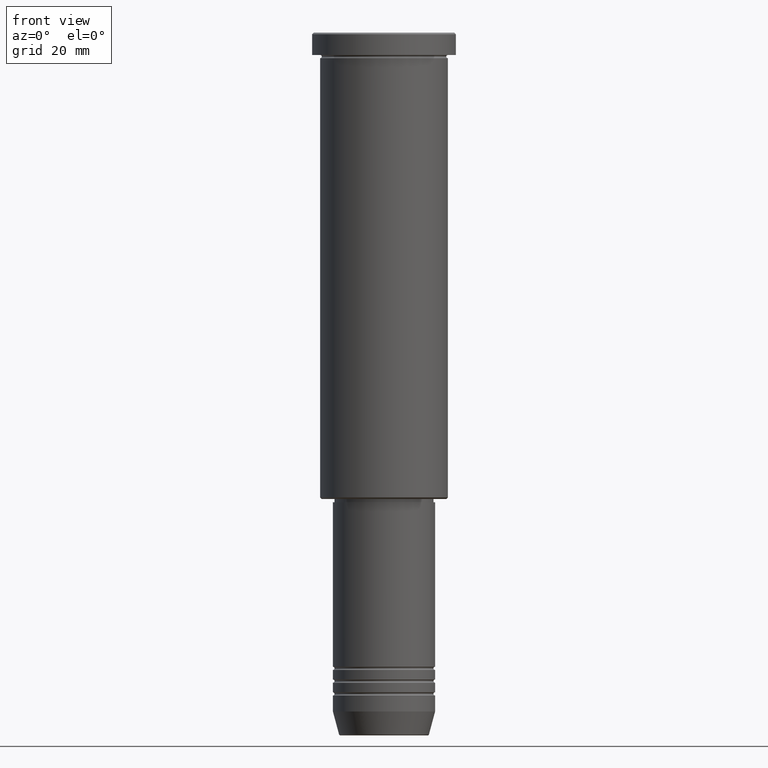
[diagram: clean part render]
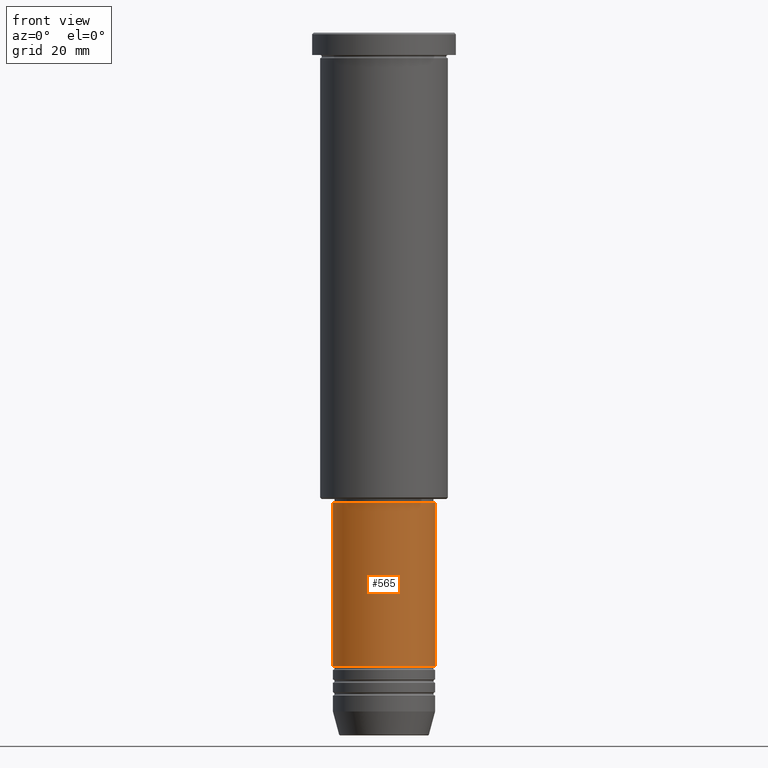
[diagram: same view with one face highlighted and labeled with its STEP entity id]
A machine part, front view. The second image highlights one B-rep face of the part: STEP entity #565.
In plain terms, the highlighted cylindrical surface (partial cylindrical patch) has radius 16 mm, axis along (-0, -0, 1).
Its self-contained STEP definition (entity closure, byte-faithful):
#125 = DIRECTION ( 'NONE',  ( -0.000000000000000000, -0.000000000000000000, 1.000000000000000000 ) ) ;
#139 = DIRECTION ( 'NONE',  ( 1.000000000000000000, 0.000000000000000000, 0.000000000000000000 ) ) ;
#173 = EDGE_CURVE ( 'NONE', #656, #217, #762, .T. ) ;
#200 = AXIS2_PLACEMENT_3D ( 'NONE', #935, #125, #139 ) ;
#212 = VERTEX_POINT ( 'NONE', #342 ) ;
#217 = VERTEX_POINT ( 'NONE', #576 ) ;
#231 = DIRECTION ( 'NONE',  ( -0.000000000000000000, -0.000000000000000000, 1.000000000000000000 ) ) ;
#249 = CARTESIAN_POINT ( 'NONE',  ( 0.000000000000000000, 0.000000000000000000, 0.000000000000000000 ) ) ;
#281 = AXIS2_PLACEMENT_3D ( 'NONE', #249, #855, #946 ) ;
#315 = LINE ( 'NONE', #338, #795 ) ;
#321 = CARTESIAN_POINT ( 'NONE',  ( 0.000000000000000000, 0.000000000000000000, -198.4999999999999716 ) ) ;
#322 = CARTESIAN_POINT ( 'NONE',  ( -16.00000000000000000, 1.959434878635765131E-15, -198.4999999999999716 ) ) ;
#338 = CARTESIAN_POINT ( 'NONE',  ( 16.00000000000000000, 0.000000000000000000, 0.000000000000000000 ) ) ;
#342 = CARTESIAN_POINT ( 'NONE',  ( 16.00000000000000000, 0.000000000000000000, -147.0000000000000000 ) ) ;
#437 = EDGE_LOOP ( 'NONE', ( #993, #708, #1083, #997 ) ) ;
#510 = DIRECTION ( 'NONE',  ( -0.000000000000000000, -0.000000000000000000, 1.000000000000000000 ) ) ;
#565 = ADVANCED_FACE ( 'NONE', ( #620 ), #595, .T. ) ;
#571 = CARTESIAN_POINT ( 'NONE',  ( 16.00000000000000000, 0.000000000000000000, -198.4999999999999716 ) ) ;
#576 = CARTESIAN_POINT ( 'NONE',  ( -16.00000000000000000, 1.959434878635765131E-15, -147.0000000000000000 ) ) ;
#595 = CYLINDRICAL_SURFACE ( 'NONE', #281, 16.00000000000000000 ) ;
#620 = FACE_OUTER_BOUND ( 'NONE', #437, .T. ) ;
#630 = VECTOR ( 'NONE', #1036, 1000.000000000000000 ) ;
#633 = CIRCLE ( 'NONE', #1169, 16.00000000000000000 ) ;
#642 = EDGE_CURVE ( 'NONE', #866, #212, #315, .T. ) ;
#656 = VERTEX_POINT ( 'NONE', #322 ) ;
#690 = CARTESIAN_POINT ( 'NONE',  ( -16.00000000000000000, 1.959434878635765131E-15, 0.000000000000000000 ) ) ;
#708 = ORIENTED_EDGE ( 'NONE', *, *, #1081, .T. ) ;
#725 = CIRCLE ( 'NONE', #200, 16.00000000000000000 ) ;
#762 = LINE ( 'NONE', #690, #630 ) ;
#795 = VECTOR ( 'NONE', #510, 1000.000000000000000 ) ;
#855 = DIRECTION ( 'NONE',  ( -0.000000000000000000, -0.000000000000000000, 1.000000000000000000 ) ) ;
#866 = VERTEX_POINT ( 'NONE', #571 ) ;
#935 = CARTESIAN_POINT ( 'NONE',  ( 0.000000000000000000, 0.000000000000000000, -147.0000000000000000 ) ) ;
#946 = DIRECTION ( 'NONE',  ( 1.000000000000000000, 0.000000000000000000, 0.000000000000000000 ) ) ;
#993 = ORIENTED_EDGE ( 'NONE', *, *, #173, .F. ) ;
#997 = ORIENTED_EDGE ( 'NONE', *, *, #1007, .F. ) ;
#1007 = EDGE_CURVE ( 'NONE', #217, #212, #725, .T. ) ;
#1036 = DIRECTION ( 'NONE',  ( -0.000000000000000000, -0.000000000000000000, 1.000000000000000000 ) ) ;
#1040 = DIRECTION ( 'NONE',  ( 1.000000000000000000, 0.000000000000000000, 0.000000000000000000 ) ) ;
#1081 = EDGE_CURVE ( 'NONE', #656, #866, #633, .T. ) ;
#1083 = ORIENTED_EDGE ( 'NONE', *, *, #642, .T. ) ;
#1169 = AXIS2_PLACEMENT_3D ( 'NONE', #321, #231, #1040 ) ;